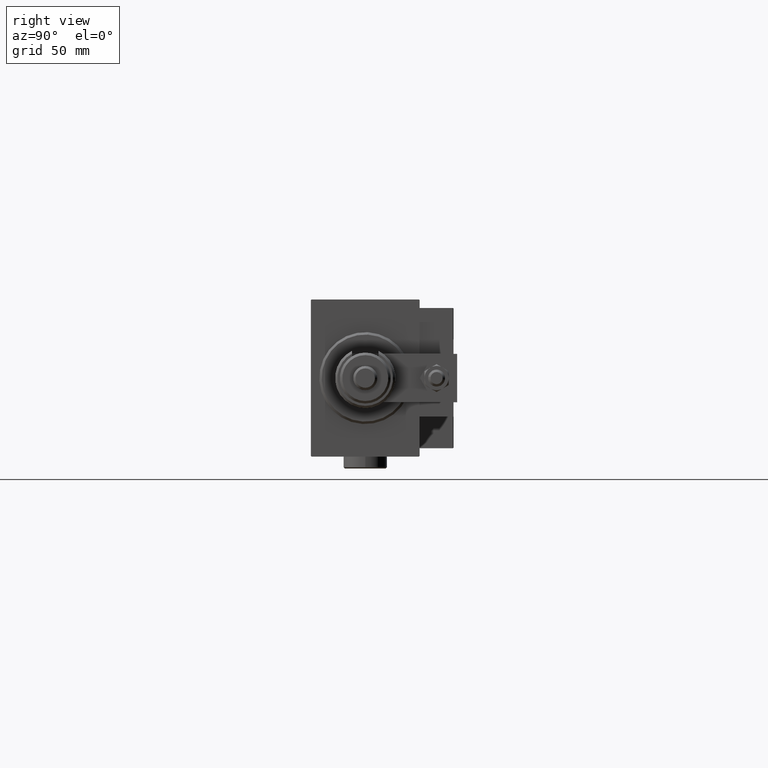
[diagram: clean part render]
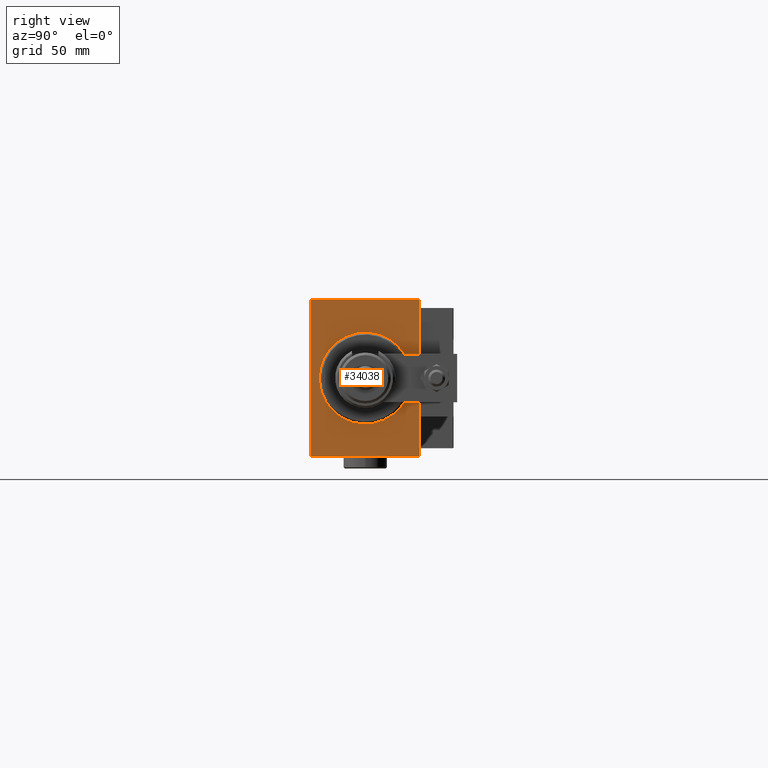
[diagram: same view with one face highlighted and labeled with its STEP entity id]
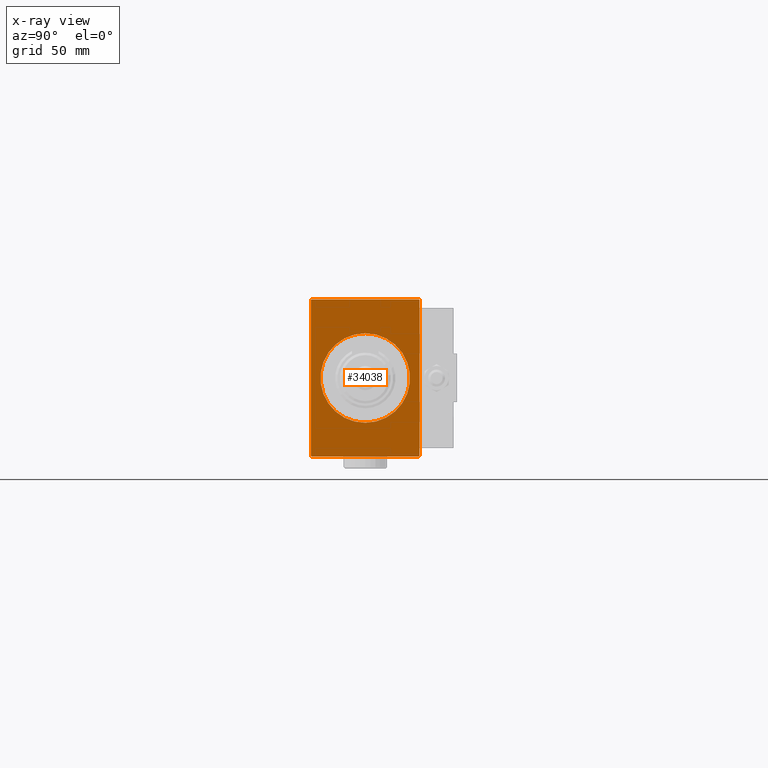
[diagram: x-ray of the same camera — body ghosted, the highlighted face saturated]
A machine part, right view. The second image highlights one B-rep face of the part: STEP entity #34038.
The next image is the same camera in x-ray: the body ghosted, the highlighted face saturated — about 0% of this face is hidden behind the body in this view.
In plain terms, the highlighted planar face has unit normal (-1, -0, 0).
Its self-contained STEP definition (entity closure, byte-faithful):
#68 = ORIENTED_EDGE ( 'NONE', *, *, #48322, .F. ) ;
#152 = CARTESIAN_POINT ( 'NONE',  ( 0.000000000000000000, 22.19999999999999929, 32.50000000000000711 ) ) ;
#947 = LINE ( 'NONE', #34598, #26135 ) ;
#1339 = DIRECTION ( 'NONE',  ( 1.000000000000000000, 0.000000000000000000, 0.000000000000000000 ) ) ;
#1424 = EDGE_CURVE ( 'NONE', #6281, #14171, #49593, .T. ) ;
#2151 = DIRECTION ( 'NONE',  ( -0.000000000000000000, -0.7071067811865474617, 0.7071067811865474617 ) ) ;
#2409 = PLANE ( 'NONE',  #10292 ) ;
#2497 = DIRECTION ( 'NONE',  ( 0.000000000000000000, -0.7071067811865474617, -0.7071067811865474617 ) ) ;
#3168 = LINE ( 'NONE', #14828, #14451 ) ;
#3193 = DIRECTION ( 'NONE',  ( 0.000000000000000000, 1.000000000000000000, 0.000000000000000000 ) ) ;
#3396 = ORIENTED_EDGE ( 'NONE', *, *, #12987, .T. ) ;
#3421 = DIRECTION ( 'NONE',  ( -0.000000000000000000, 0.7071067811865066055, -0.7071067811865884289 ) ) ;
#3427 = DIRECTION ( 'NONE',  ( 0.000000000000000000, -1.000000000000000000, -1.541976423090495633E-16 ) ) ;
#3738 = EDGE_CURVE ( 'NONE', #47229, #16978, #35715, .T. ) ;
#3948 = VECTOR ( 'NONE', #2151, 1000.000000000000114 ) ;
#4421 = CARTESIAN_POINT ( 'NONE',  ( 0.000000000000000000, -22.49999999999999645, -32.20000000000000284 ) ) ;
#4515 = ORIENTED_EDGE ( 'NONE', *, *, #52022, .T. ) ;
#4588 = CARTESIAN_POINT ( 'NONE',  ( 0.000000000000000000, 22.50000000000000355, -32.19999999999998153 ) ) ;
#4680 = VECTOR ( 'NONE', #23516, 1000.000000000000000 ) ;
#6120 = ORIENTED_EDGE ( 'NONE', *, *, #10289, .T. ) ;
#6281 = VERTEX_POINT ( 'NONE', #10821 ) ;
#6672 = CARTESIAN_POINT ( 'NONE',  ( 0.000000000000000000, -22.49999999999999645, 32.50000000000000000 ) ) ;
#7311 = EDGE_CURVE ( 'NONE', #47229, #31958, #43994, .T. ) ;
#8866 = CARTESIAN_POINT ( 'NONE',  ( 0.000000000000000000, 0.000000000000000000, 0.000000000000000000 ) ) ;
#9049 = CARTESIAN_POINT ( 'NONE',  ( 0.000000000000000000, -22.19999999999998863, 32.50000000000000000 ) ) ;
#9923 = CARTESIAN_POINT ( 'NONE',  ( 0.000000000000000000, -22.19999999999999929, -32.50000000000000000 ) ) ;
#10289 = EDGE_CURVE ( 'NONE', #26556, #16978, #40419, .T. ) ;
#10292 = AXIS2_PLACEMENT_3D ( 'NONE', #34719, #35258, #39062 ) ;
#10788 = CARTESIAN_POINT ( 'NONE',  ( 0.000000000000000000, 2.265596578422602213E-15, -18.49999999999998934 ) ) ;
#10820 = CARTESIAN_POINT ( 'NONE',  ( 0.000000000000000000, -22.19999999999999929, -32.50000000000000000 ) ) ;
#10821 = CARTESIAN_POINT ( 'NONE',  ( 0.000000000000000000, 22.19999999999999929, 32.50000000000000711 ) ) ;
#10848 = DIRECTION ( 'NONE',  ( -0.000000000000000000, 0.7071067811865802133, 0.7071067811865149322 ) ) ;
#11427 = ORIENTED_EDGE ( 'NONE', *, *, #26885, .F. ) ;
#11541 = AXIS2_PLACEMENT_3D ( 'NONE', #17356, #1339, #47491 ) ;
#12218 = VERTEX_POINT ( 'NONE', #17059 ) ;
#12987 = EDGE_CURVE ( 'NONE', #46257, #12218, #39688, .T. ) ;
#14171 = VERTEX_POINT ( 'NONE', #34215 ) ;
#14451 = VECTOR ( 'NONE', #3427, 1000.000000000000000 ) ;
#14828 = CARTESIAN_POINT ( 'NONE',  ( 0.000000000000000000, 22.49999999999999645, 32.50000000000000711 ) ) ;
#15669 = CARTESIAN_POINT ( 'NONE',  ( 0.000000000000000000, -22.49999999999999645, -32.50000000000000000 ) ) ;
#16978 = VERTEX_POINT ( 'NONE', #4421 ) ;
#17059 = CARTESIAN_POINT ( 'NONE',  ( 0.000000000000000000, 22.19999999999996732, -32.50000000000000000 ) ) ;
#17356 = CARTESIAN_POINT ( 'NONE',  ( 0.000000000000000000, 0.000000000000000000, 0.000000000000000000 ) ) ;
#17817 = DIRECTION ( 'NONE',  ( 1.000000000000000000, 0.000000000000000000, 0.000000000000000000 ) ) ;
#18550 = VECTOR ( 'NONE', #10848, 999.9999999999998863 ) ;
#19301 = CARTESIAN_POINT ( 'NONE',  ( 0.000000000000000000, 22.50000000000000355, -32.19999999999998153 ) ) ;
#19761 = VECTOR ( 'NONE', #3193, 1000.000000000000000 ) ;
#19770 = CARTESIAN_POINT ( 'NONE',  ( 0.000000000000000000, -22.49999999999999645, 32.20000000000003126 ) ) ;
#22385 = DIRECTION ( 'NONE',  ( 0.000000000000000000, -1.067522139062650425E-16, 1.000000000000000000 ) ) ;
#23306 = LINE ( 'NONE', #15669, #19761 ) ;
#23516 = DIRECTION ( 'NONE',  ( 0.000000000000000000, 0.000000000000000000, -1.000000000000000000 ) ) ;
#24523 = AXIS2_PLACEMENT_3D ( 'NONE', #8866, #17817, #25453 ) ;
#25453 = DIRECTION ( 'NONE',  ( 0.000000000000000000, 0.000000000000000000, -1.000000000000000000 ) ) ;
#26135 = VECTOR ( 'NONE', #22385, 1000.000000000000000 ) ;
#26227 = VERTEX_POINT ( 'NONE', #10788 ) ;
#26556 = VERTEX_POINT ( 'NONE', #9923 ) ;
#26720 = CARTESIAN_POINT ( 'NONE',  ( 0.000000000000000000, 0.000000000000000000, 18.49999999999998934 ) ) ;
#26885 = EDGE_CURVE ( 'NONE', #6281, #31958, #3168, .T. ) ;
#29294 = EDGE_LOOP ( 'NONE', ( #31545, #4515 ) ) ;
#31545 = ORIENTED_EDGE ( 'NONE', *, *, #51393, .T. ) ;
#31958 = VERTEX_POINT ( 'NONE', #9049 ) ;
#32301 = CARTESIAN_POINT ( 'NONE',  ( 0.000000000000000000, -22.49999999999999645, 32.20000000000003126 ) ) ;
#32330 = EDGE_CURVE ( 'NONE', #26556, #12218, #23306, .T. ) ;
#33436 = VERTEX_POINT ( 'NONE', #26720 ) ;
#34038 = ADVANCED_FACE ( 'NONE', ( #34982, #39324 ), #2409, .F. ) ;
#34041 = CIRCLE ( 'NONE', #24523, 18.49999999999998934 ) ;
#34215 = CARTESIAN_POINT ( 'NONE',  ( 0.000000000000000000, 22.49999999999999645, 32.19999999999998153 ) ) ;
#34598 = CARTESIAN_POINT ( 'NONE',  ( 0.000000000000000000, 22.50000000000000355, -32.50000000000000000 ) ) ;
#34719 = CARTESIAN_POINT ( 'NONE',  ( 0.000000000000000000, 0.000000000000000000, 0.000000000000000000 ) ) ;
#34982 = FACE_BOUND ( 'NONE', #29294, .T. ) ;
#35058 = ORIENTED_EDGE ( 'NONE', *, *, #32330, .F. ) ;
#35258 = DIRECTION ( 'NONE',  ( 1.000000000000000000, 0.000000000000000000, 0.000000000000000000 ) ) ;
#35715 = LINE ( 'NONE', #6672, #4680 ) ;
#39062 = DIRECTION ( 'NONE',  ( 0.000000000000000000, 0.000000000000000000, -1.000000000000000000 ) ) ;
#39324 = FACE_OUTER_BOUND ( 'NONE', #51344, .T. ) ;
#39572 = ORIENTED_EDGE ( 'NONE', *, *, #7311, .T. ) ;
#39688 = LINE ( 'NONE', #19301, #50913 ) ;
#40419 = LINE ( 'NONE', #10820, #3948 ) ;
#41010 = VECTOR ( 'NONE', #3421, 1000.000000000000114 ) ;
#43994 = LINE ( 'NONE', #32301, #18550 ) ;
#46257 = VERTEX_POINT ( 'NONE', #4588 ) ;
#46716 = ORIENTED_EDGE ( 'NONE', *, *, #3738, .F. ) ;
#47229 = VERTEX_POINT ( 'NONE', #19770 ) ;
#47491 = DIRECTION ( 'NONE',  ( 0.000000000000000000, 0.000000000000000000, -1.000000000000000000 ) ) ;
#48322 = EDGE_CURVE ( 'NONE', #46257, #14171, #947, .T. ) ;
#48536 = ORIENTED_EDGE ( 'NONE', *, *, #1424, .T. ) ;
#49593 = LINE ( 'NONE', #152, #41010 ) ;
#50573 = CIRCLE ( 'NONE', #11541, 18.49999999999998934 ) ;
#50913 = VECTOR ( 'NONE', #2497, 1000.000000000000114 ) ;
#51344 = EDGE_LOOP ( 'NONE', ( #11427, #48536, #68, #3396, #35058, #6120, #46716, #39572 ) ) ;
#51393 = EDGE_CURVE ( 'NONE', #33436, #26227, #34041, .T. ) ;
#52022 = EDGE_CURVE ( 'NONE', #26227, #33436, #50573, .T. ) ;